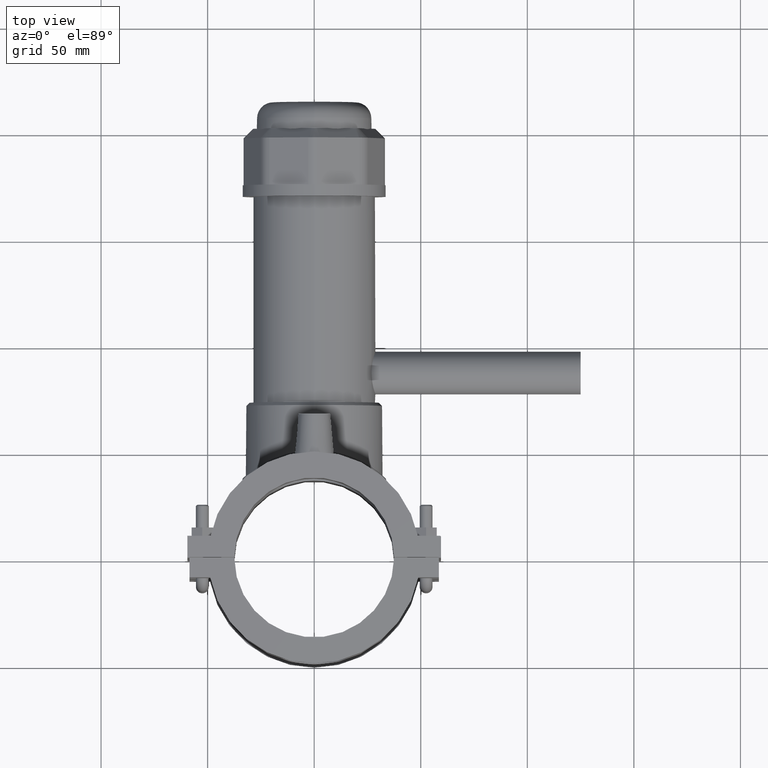
[diagram: clean part render]
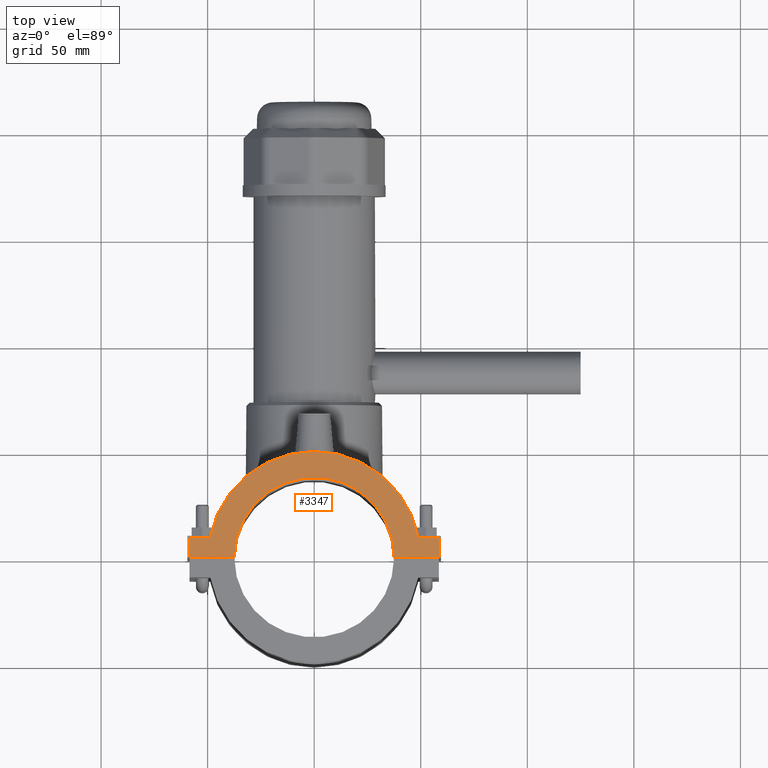
[diagram: same view with one face highlighted and labeled with its STEP entity id]
A machine part, top view. The second image highlights one B-rep face of the part: STEP entity #3347.
In plain terms, the highlighted planar face has unit normal (0, 0, 1).
Its self-contained STEP definition (entity closure, byte-faithful):
#135=LINE('',#5500,#422);
#176=LINE('',#5785,#463);
#219=LINE('',#6014,#506);
#221=LINE('',#6017,#508);
#276=LINE('',#6362,#563);
#321=LINE('',#6651,#608);
#422=VECTOR('',#4028,9.66676336755878);
#463=VECTOR('',#4103,9.32499999999999);
#506=VECTOR('',#4182,9.32499999999999);
#508=VECTOR('',#4186,9.66676336755878);
#563=VECTOR('',#4395,21.0000333333482);
#608=VECTOR('',#4552,21.0000333333482);
#967=FACE_OUTER_BOUND('',#1217,.T.);
#1217=EDGE_LOOP('',(#3030,#3031,#3032,#3033,#3034,#3035,#3036,#3037));
#1270=CIRCLE('',#3475,49.725);
#1332=CIRCLE('',#3657,37.5);
#1446=VERTEX_POINT('',#5469);
#1447=VERTEX_POINT('',#5470);
#1457=VERTEX_POINT('',#5498);
#1507=VERTEX_POINT('',#5783);
#1543=VERTEX_POINT('',#6011);
#1544=VERTEX_POINT('',#6013);
#1600=VERTEX_POINT('',#6360);
#1641=VERTEX_POINT('',#6650);
#1801=EDGE_CURVE('',#1446,#1447,#1270,.T.);
#1816=EDGE_CURVE('',#1447,#1457,#135,.T.);
#1878=EDGE_CURVE('',#1457,#1507,#176,.T.);
#1930=EDGE_CURVE('',#1544,#1543,#219,.T.);
#1932=EDGE_CURVE('',#1543,#1446,#221,.T.);
#2022=EDGE_CURVE('',#1507,#1600,#276,.T.);
#2094=EDGE_CURVE('',#1641,#1544,#321,.T.);
#2100=EDGE_CURVE('',#1600,#1641,#1332,.T.);
#3030=ORIENTED_EDGE('',*,*,#2094,.T.);
#3031=ORIENTED_EDGE('',*,*,#1930,.T.);
#3032=ORIENTED_EDGE('',*,*,#1932,.T.);
#3033=ORIENTED_EDGE('',*,*,#1801,.T.);
#3034=ORIENTED_EDGE('',*,*,#1816,.T.);
#3035=ORIENTED_EDGE('',*,*,#1878,.T.);
#3036=ORIENTED_EDGE('',*,*,#2022,.T.);
#3037=ORIENTED_EDGE('',*,*,#2100,.T.);
#3155=PLANE('',#3660);
#3347=ADVANCED_FACE('',(#967),#3155,.T.);
#3475=AXIS2_PLACEMENT_3D('',#5471,#3999,#4000);
#3657=AXIS2_PLACEMENT_3D('',#6662,#4564,#4565);
#3660=AXIS2_PLACEMENT_3D('',#6665,#4570,#4571);
#3999=DIRECTION('center_axis',(0.,0.,1.));
#4000=DIRECTION('ref_axis',(0.982066096177803,0.188536953242836,0.));
#4028=DIRECTION('',(-1.,0.,0.));
#4103=DIRECTION('',(0.,-1.,0.));
#4182=DIRECTION('',(0.,1.,0.));
#4186=DIRECTION('',(-1.,0.,0.));
#4395=DIRECTION('',(1.,-2.96533927517403E-19,0.));
#4552=DIRECTION('',(1.,-2.96533927517403E-19,0.));
#4564=DIRECTION('center_axis',(0.,0.,-1.));
#4565=DIRECTION('ref_axis',(-1.,0.,0.));
#4570=DIRECTION('center_axis',(0.,0.,1.));
#4571=DIRECTION('ref_axis',(1.,0.,0.));
#5469=CARTESIAN_POINT('',(48.8332366324412,9.375,59.));
#5470=CARTESIAN_POINT('',(-48.8332366324412,9.375,59.));
#5471=CARTESIAN_POINT('Origin',(0.,0.,59.));
#5498=CARTESIAN_POINT('',(-58.5,9.375,59.));
#5500=CARTESIAN_POINT('',(-47.840065583149,9.375,59.));
#5783=CARTESIAN_POINT('',(-58.5,0.0500000000000078,59.));
#5785=CARTESIAN_POINT('',(-58.5,9.375,59.));
#6011=CARTESIAN_POINT('',(58.5,9.375,59.));
#6013=CARTESIAN_POINT('',(58.5,0.0500000000000078,59.));
#6014=CARTESIAN_POINT('',(58.5,-9.375,59.));
#6017=CARTESIAN_POINT('',(58.5,9.375,59.));
#6360=CARTESIAN_POINT('',(-37.4999666666519,0.0500000000000078,59.));
#6362=CARTESIAN_POINT('',(2.35981206391352,0.0500000000000078,59.));
#6650=CARTESIAN_POINT('',(37.4999666666519,0.0500000000000078,59.));
#6651=CARTESIAN_POINT('',(2.35981206391352,0.0500000000000078,59.));
#6662=CARTESIAN_POINT('Origin',(0.,0.,59.));
#6665=CARTESIAN_POINT('Origin',(-53.780375872173,-1.58495564254233E-16,
59.));